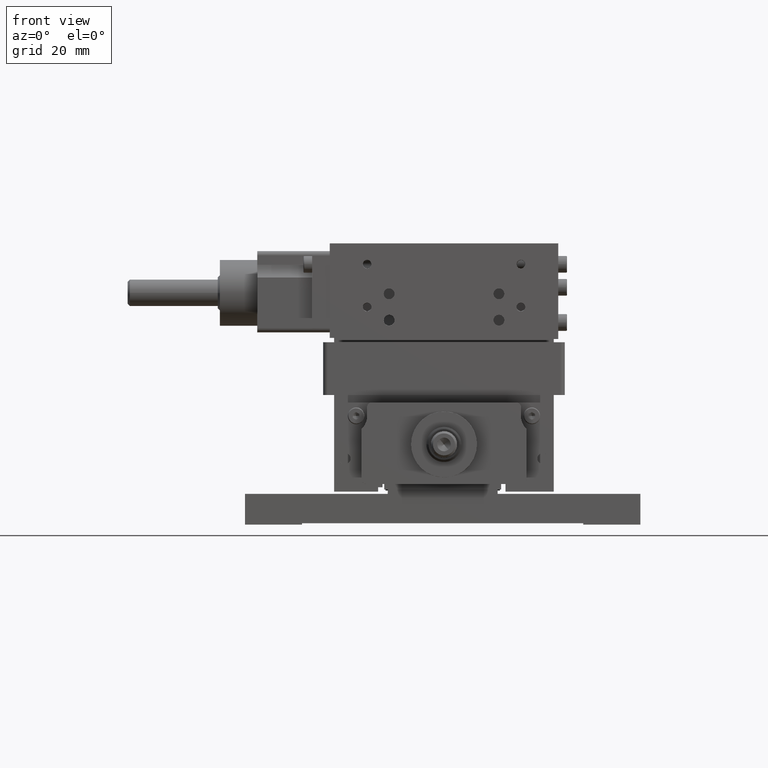
[diagram: clean part render]
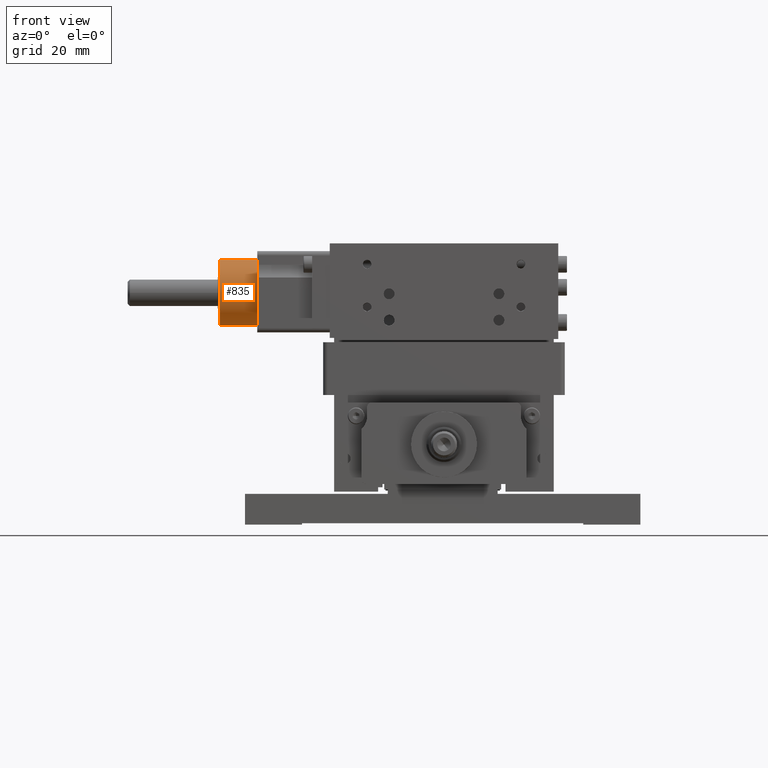
[diagram: same view with one face highlighted and labeled with its STEP entity id]
A machine part, front view. The second image highlights one B-rep face of the part: STEP entity #835.
In plain terms, the highlighted face is a freeform B-spline surface patch.
Its self-contained STEP definition (entity closure, byte-faithful):
#835=ADVANCED_FACE('',(#2019),#38931,.T.);
#2019=FACE_OUTER_BOUND('',#3205,.T.);
#3205=EDGE_LOOP('',(#4647,#4648,#4649,#4650));
#4647=ORIENTED_EDGE('',*,*,#31523,.T.);
#4648=ORIENTED_EDGE('',*,*,#31524,.T.);
#4649=ORIENTED_EDGE('',*,*,#31525,.T.);
#4650=ORIENTED_EDGE('',*,*,#31526,.T.);
#10426=PCURVE('',#38931,#16205);
#10427=PCURVE('',#38931,#16206);
#10428=PCURVE('',#38931,#16207);
#10429=PCURVE('',#38931,#16208);
#10431=PCURVE('',#38932,#16210);
#10433=PCURVE('',#38932,#16212);
#10435=PCURVE('',#38444,#16214);
#10538=PCURVE('',#38453,#16317);
#16205=DEFINITIONAL_REPRESENTATION('',(#22009),#87459);
#16206=DEFINITIONAL_REPRESENTATION('',(#22011),#87459);
#16207=DEFINITIONAL_REPRESENTATION('',(#22012),#87459);
#16208=DEFINITIONAL_REPRESENTATION('',(#22014),#87459);
#16210=DEFINITIONAL_REPRESENTATION('',(#22016),#87459);
#16212=DEFINITIONAL_REPRESENTATION('',(#22018),#87459);
#16214=DEFINITIONAL_REPRESENTATION('',(#34452),#87459);
#16317=DEFINITIONAL_REPRESENTATION('',(#34503),#87459);
#22009=B_SPLINE_CURVE_WITH_KNOTS('',1,(#43330,#43331),.UNSPECIFIED.,.F.,
 .F.,(2,2),(0.,40.1691756688348),.UNSPECIFIED.);
#22010=B_SPLINE_CURVE_WITH_KNOTS('',1,(#43332,#43333),.UNSPECIFIED.,.F.,
 .F.,(2,2),(0.970000000000042,9.47000000000004),.UNSPECIFIED.);
#22011=B_SPLINE_CURVE_WITH_KNOTS('',1,(#43334,#43335),.UNSPECIFIED.,.F.,
 .F.,(2,2),(0.970000000000042,9.47000000000004),.UNSPECIFIED.);
#22012=B_SPLINE_CURVE_WITH_KNOTS('',1,(#43345,#43346),.UNSPECIFIED.,.F.,
 .F.,(2,2),(-16.6072307669113,23.5619449019234),.UNSPECIFIED.);
#22013=B_SPLINE_CURVE_WITH_KNOTS('',1,(#43347,#43348),.UNSPECIFIED.,.F.,
 .F.,(2,2),(-8.5,0.),.UNSPECIFIED.);
#22014=B_SPLINE_CURVE_WITH_KNOTS('',1,(#43349,#43350),.UNSPECIFIED.,.F.,
 .F.,(2,2),(-8.5,0.),.UNSPECIFIED.);
#22016=B_SPLINE_CURVE_WITH_KNOTS('',1,(#43356,#43357),.UNSPECIFIED.,.F.,
 .F.,(2,2),(0.970000000000042,9.47000000000004),.UNSPECIFIED.);
#22018=B_SPLINE_CURVE_WITH_KNOTS('',1,(#43363,#43364),.UNSPECIFIED.,.F.,
 .F.,(2,2),(-8.5,0.),.UNSPECIFIED.);
#28574=SURFACE_CURVE('',#34447,(#10426,#10435),.PCURVE_S1.);
#28575=SURFACE_CURVE('',#22010,(#10427,#10431),.PCURVE_S1.);
#28576=SURFACE_CURVE('',#34448,(#10428,#10538),.PCURVE_S1.);
#28577=SURFACE_CURVE('',#22013,(#10429,#10433),.PCURVE_S1.);
#31523=EDGE_CURVE('',#36575,#36576,#28574,.T.);
#31524=EDGE_CURVE('',#36576,#36577,#28575,.T.);
#31525=EDGE_CURVE('',#36577,#36574,#28576,.T.);
#31526=EDGE_CURVE('',#36574,#36575,#28577,.T.);
#34447=(
BOUNDED_CURVE()
B_SPLINE_CURVE(2,(#43319,#43320,#43321,#43322,#43323,#43324,#43325,#43326,
#43327,#43328,#43329),.UNSPECIFIED.,.F.,.F.)
B_SPLINE_CURVE_WITH_KNOTS((3,2,2,2,2,3),(0.,4.82625831594963,13.6619876541709,
22.4977169923922,31.3334463306135,40.1691756688348),.UNSPECIFIED.)
CURVE()
GEOMETRIC_REPRESENTATION_ITEM()
RATIONAL_B_SPLINE_CURVE((1.,0.948683298050513,1.,0.831469612302545,1.,0.831469612302545,
1.,0.831469612302545,1.,0.831469612302545,1.))
REPRESENTATION_ITEM('')
);
#34448=(
BOUNDED_CURVE()
B_SPLINE_CURVE(2,(#43336,#43337,#43338,#43339,#43340,#43341,#43342,#43343,
#43344),.UNSPECIFIED.,.F.,.F.)
B_SPLINE_CURVE_WITH_KNOTS((3,2,2,2,3),(-16.6072307669113,-8.30361538345566,
0.,11.7809724509617,23.5619449019234),.UNSPECIFIED.)
CURVE()
GEOMETRIC_REPRESENTATION_ITEM()
RATIONAL_B_SPLINE_CURVE((1.,0.85065080835204,1.,0.85065080835204,1.,0.707106781186548,
1.,0.707106781186548,1.))
REPRESENTATION_ITEM('')
);
#34452=(
BOUNDED_CURVE()
B_SPLINE_CURVE(2,(#43368,#43369,#43370,#43371,#43372,#43373,#43374,#43375,
#43376,#43377,#43378),.UNSPECIFIED.,.F.,.F.)
B_SPLINE_CURVE_WITH_KNOTS((3,2,2,2,2,3),(0.,4.81869819943784,15.3765398493485,
25.9343840164454,36.4922281835423,40.1691756688348),.UNSPECIFIED.)
CURVE()
GEOMETRIC_REPRESENTATION_ITEM()
RATIONAL_B_SPLINE_CURVE((1.,0.948683345734214,1.,0.761637232548861,1.,0.761637132434786,
1.,0.761637132434786,1.,0.971025054237571,1.))
REPRESENTATION_ITEM('')
);
#34503=(
BOUNDED_CURVE()
B_SPLINE_CURVE(2,(#43769,#43770,#43771,#43772,#43773,#43774,#43775,#43776,
#43777),.UNSPECIFIED.,.F.,.F.)
B_SPLINE_CURVE_WITH_KNOTS((3,2,2,2,3),(-16.6072307669113,-11.7338926628448,
0.0313874604317661,11.7966675837083,23.5619449019234),.UNSPECIFIED.)
CURVE()
GEOMETRIC_REPRESENTATION_ITEM()
RATIONAL_B_SPLINE_CURVE((1.,0.94868330444796,1.,0.707106781186548,1.,0.707106781186548,
1.,0.707106900395835,1.))
REPRESENTATION_ITEM('')
);
#36574=VERTEX_POINT('',#42610);
#36575=VERTEX_POINT('',#42611);
#36576=VERTEX_POINT('',#42612);
#36577=VERTEX_POINT('',#42613);
#38444=B_SPLINE_SURFACE_WITH_KNOTS('',1,1,((#39894,#39895),(#39896,#39897)),
 .UNSPECIFIED.,.F.,.F.,.F.,(2,2),(2,2),(-10.9162814274485,9.28329831158624),
(-10.3482940034729,11.5278333992854),.UNSPECIFIED.);
#38453=B_SPLINE_SURFACE_WITH_KNOTS('',1,1,((#40092,#40093),(#40094,#40095)),
 .UNSPECIFIED.,.F.,.F.,.F.,(2,2),(2,2),(-40.1200000000001,5.12000000000005),
(-22.7200000000001,2.72),.UNSPECIFIED.);
#38931=(
BOUNDED_SURFACE()
B_SPLINE_SURFACE(2,1,((#39858,#39859),(#39860,#39861),(#39862,#39863),(#39864,
#39865),(#39866,#39867),(#39868,#39869),(#39870,#39871),(#39872,#39873),
(#39874,#39875)),.UNSPECIFIED.,.T.,.F.,.F.)
B_SPLINE_SURFACE_WITH_KNOTS((3,2,2,2,3),(2,2),(0.,1.5707963267949,3.14159265358979,
4.71238898038469,6.28318530717959),(0.,10.4400000000001),.UNSPECIFIED.)
GEOMETRIC_REPRESENTATION_ITEM()
RATIONAL_B_SPLINE_SURFACE(((1.,1.),(0.707106781186548,0.707106781186548),
(1.,1.),(0.707106781186548,0.707106781186548),(1.,1.),(0.707106781186548,
0.707106781186548),(1.,1.),(0.707106781186548,0.707106781186548),(1.,1.)))
REPRESENTATION_ITEM('')
SURFACE()
);
#38932=(
BOUNDED_SURFACE()
B_SPLINE_SURFACE(2,1,((#39876,#39877),(#39878,#39879),(#39880,#39881),(#39882,
#39883),(#39884,#39885),(#39886,#39887),(#39888,#39889),(#39890,#39891),
(#39892,#39893)),.UNSPECIFIED.,.T.,.F.,.F.)
B_SPLINE_SURFACE_WITH_KNOTS((3,2,2,2,3),(2,2),(0.,1.5707963267949,3.14159265358979,
4.71238898038469,6.28318530717959),(0.,10.4400000000001),.UNSPECIFIED.)
GEOMETRIC_REPRESENTATION_ITEM()
RATIONAL_B_SPLINE_SURFACE(((1.,1.),(0.707106781186548,0.707106781186548),
(1.,1.),(0.707106781186548,0.707106781186548),(1.,1.),(0.707106781186548,
0.707106781186548),(1.,1.),(0.707106781186548,0.707106781186548),(1.,1.)))
REPRESENTATION_ITEM('')
SURFACE()
);
#39858=CARTESIAN_POINT('',(-51.8864528104949,-0.0739224317621039,45.7690559995547));
#39859=CARTESIAN_POINT('',(-41.4464528104948,-0.0739224317621074,45.7690559995547));
#39860=CARTESIAN_POINT('',(-51.8864528104948,7.42607756823789,45.7690559995547));
#39861=CARTESIAN_POINT('',(-41.4464528104948,7.4260775682379,45.7690559995547));
#39862=CARTESIAN_POINT('',(-51.8864528104949,7.4260775682379,53.2690559995547));
#39863=CARTESIAN_POINT('',(-41.4464528104948,7.42607756823791,53.2690559995547));
#39864=CARTESIAN_POINT('',(-51.8864528104948,7.4260775682379,60.7690559995547));
#39865=CARTESIAN_POINT('',(-41.4464528104948,7.42607756823791,60.7690559995547));
#39866=CARTESIAN_POINT('',(-51.8864528104949,-0.073922431762103,60.7690559995547));
#39867=CARTESIAN_POINT('',(-41.4464528104948,-0.0739224317620994,60.7690559995547));
#39868=CARTESIAN_POINT('',(-51.8864528104948,-7.5739224317621,60.7690559995547));
#39869=CARTESIAN_POINT('',(-41.4464528104948,-7.57392243176211,60.7690559995547));
#39870=CARTESIAN_POINT('',(-51.8864528104949,-7.5739224317621,53.2690559995547));
#39871=CARTESIAN_POINT('',(-41.4464528104948,-7.57392243176212,53.2690559995547));
#39872=CARTESIAN_POINT('',(-51.8864528104948,-7.5739224317621,45.7690559995547));
#39873=CARTESIAN_POINT('',(-41.4464528104948,-7.57392243176212,45.7690559995547));
#39874=CARTESIAN_POINT('',(-51.8864528104949,-0.0739224317621039,45.7690559995547));
#39875=CARTESIAN_POINT('',(-41.4464528104948,-0.0739224317621074,45.7690559995547));
#39876=CARTESIAN_POINT('',(-51.8864528104949,-0.0739224317621039,45.7690559995547));
#39877=CARTESIAN_POINT('',(-41.4464528104948,-0.0739224317621074,45.7690559995547));
#39878=CARTESIAN_POINT('',(-51.8864528104948,7.42607756823789,45.7690559995547));
#39879=CARTESIAN_POINT('',(-41.4464528104948,7.4260775682379,45.7690559995547));
#39880=CARTESIAN_POINT('',(-51.8864528104949,7.4260775682379,53.2690559995547));
#39881=CARTESIAN_POINT('',(-41.4464528104948,7.42607756823791,53.2690559995547));
#39882=CARTESIAN_POINT('',(-51.8864528104948,7.4260775682379,60.7690559995547));
#39883=CARTESIAN_POINT('',(-41.4464528104948,7.42607756823791,60.7690559995547));
#39884=CARTESIAN_POINT('',(-51.8864528104949,-0.073922431762103,60.7690559995547));
#39885=CARTESIAN_POINT('',(-41.4464528104948,-0.0739224317620994,60.7690559995547));
#39886=CARTESIAN_POINT('',(-51.8864528104948,-7.5739224317621,60.7690559995547));
#39887=CARTESIAN_POINT('',(-41.4464528104948,-7.57392243176211,60.7690559995547));
#39888=CARTESIAN_POINT('',(-51.8864528104949,-7.5739224317621,53.2690559995547));
#39889=CARTESIAN_POINT('',(-41.4464528104948,-7.57392243176212,53.2690559995547));
#39890=CARTESIAN_POINT('',(-51.8864528104948,-7.5739224317621,45.7690559995547));
#39891=CARTESIAN_POINT('',(-41.4464528104948,-7.57392243176212,45.7690559995547));
#39892=CARTESIAN_POINT('',(-51.8864528104949,-0.0739224317621039,45.7690559995547));
#39893=CARTESIAN_POINT('',(-41.4464528104948,-0.0739224317621074,45.7690559995547));
#39894=CARTESIAN_POINT('',(-50.9164528104948,-10.9902038592106,63.6173500030276));
#39895=CARTESIAN_POINT('',(-50.9164528104948,-10.9902038592105,41.7412226002692));
#39896=CARTESIAN_POINT('',(-50.9164528104948,9.20937587982412,63.6173500030276));
#39897=CARTESIAN_POINT('',(-50.9164528104948,9.20937587982415,41.7412226002693));
#40092=CARTESIAN_POINT('',(-42.4164528104948,-22.6939224317622,65.9890559995547));
#40093=CARTESIAN_POINT('',(-42.4164528104948,-22.6939224317622,40.5490559995546));
#40094=CARTESIAN_POINT('',(-42.4164528104948,22.546077568238,65.9890559995548));
#40095=CARTESIAN_POINT('',(-42.4164528104948,22.546077568238,40.5490559995547));
#42610=CARTESIAN_POINT('',(-42.4164528104948,5.92607756823791,48.7690559995547));
#42611=CARTESIAN_POINT('',(-50.9164528104948,5.9260775682379,48.7690559995547));
#42612=CARTESIAN_POINT('',(-50.9164528104948,-0.0739224317621048,45.7690559995547));
#42613=CARTESIAN_POINT('',(-42.4164528104948,-0.0739224317621066,45.7690559995547));
#43319=CARTESIAN_POINT('',(-50.9164528104948,5.9260775682379,48.7690559995547));
#43320=CARTESIAN_POINT('',(-50.9164528104948,7.4260775682379,50.7690559995547));
#43321=CARTESIAN_POINT('',(-50.9164528104948,7.42607756823789,53.2690559995547));
#43322=CARTESIAN_POINT('',(-50.9164528104948,7.42607756823788,58.2803957839494));
#43323=CARTESIAN_POINT('',(-50.9164528104948,2.79620331097605,60.1981524933893));
#43324=CARTESIAN_POINT('',(-50.9164528104948,-1.83367094628578,62.1159092028292));
#43325=CARTESIAN_POINT('',(-50.9164528104948,-5.37722329066123,58.5723568584538));
#43326=CARTESIAN_POINT('',(-50.9164528104948,-8.92077563503667,55.0288045140783));
#43327=CARTESIAN_POINT('',(-50.9164528104948,-7.00301892559676,50.3989302568165));
#43328=CARTESIAN_POINT('',(-50.9164528104948,-5.08526221615685,45.7690559995547));
#43329=CARTESIAN_POINT('',(-50.9164528104948,-0.0739224317621074,45.7690559995547));
#43330=CARTESIAN_POINT('',(0.920151184510611,0.970000000000042));
#43331=CARTESIAN_POINT('',(6.28318530717959,0.970000000000042));
#43332=CARTESIAN_POINT('',(-50.9164528104948,-0.0739224317621048,45.7690559995547));
#43333=CARTESIAN_POINT('',(-42.4164528104948,-0.0739224317621066,45.7690559995547));
#43334=CARTESIAN_POINT('',(6.28318530717959,0.970000000000042));
#43335=CARTESIAN_POINT('',(6.28318530717959,9.47000000000004));
#43336=CARTESIAN_POINT('',(-42.4164528104948,-0.0739224317621079,45.7690559995547));
#43337=CARTESIAN_POINT('',(-42.4164528104948,-4.70917734738632,45.7690559995547));
#43338=CARTESIAN_POINT('',(-42.4164528104948,-6.78212636426148,49.914954033305));
#43339=CARTESIAN_POINT('',(-42.4164528104948,-8.85507538113664,54.0608520670553));
#43340=CARTESIAN_POINT('',(-42.4164528104947,-6.07392243176212,57.7690559995547));
#43341=CARTESIAN_POINT('',(-42.4164528104947,-1.57392243176213,63.7690559995547));
#43342=CARTESIAN_POINT('',(-42.4164528104947,4.42607756823787,59.2690559995547));
#43343=CARTESIAN_POINT('',(-42.4164528104948,10.4260775682379,54.7690559995547));
#43344=CARTESIAN_POINT('',(-42.4164528104948,5.9260775682379,48.7690559995547));
#43345=CARTESIAN_POINT('',(6.28318530717959,9.47000000000004));
#43346=CARTESIAN_POINT('',(0.920151184510611,9.47000000000005));
#43347=CARTESIAN_POINT('',(-42.4164528104948,5.92607756823791,48.7690559995547));
#43348=CARTESIAN_POINT('',(-50.9164528104948,5.9260775682379,48.7690559995547));
#43349=CARTESIAN_POINT('',(0.920151184510611,9.47000000000005));
#43350=CARTESIAN_POINT('',(0.920151184510611,0.970000000000042));
#43356=CARTESIAN_POINT('',(0.,0.970000000000039));
#43357=CARTESIAN_POINT('',(0.,9.47000000000004));
#43363=CARTESIAN_POINT('',(0.920151184510611,9.47000000000005));
#43364=CARTESIAN_POINT('',(0.920151184510611,0.970000000000045));
#43368=CARTESIAN_POINT('',(5.99999999999999,4.50000000000001));
#43369=CARTESIAN_POINT('',(7.49999924605436,2.50000100526085));
#43370=CARTESIAN_POINT('',(7.5,8.93476210686719E-15));
#43371=CARTESIAN_POINT('',(7.49999802831166,-6.38102879794704));
#43372=CARTESIAN_POINT('',(1.20136682255227,-7.40315593228121));
#43373=CARTESIAN_POINT('',(-5.09726635489548,-8.42528338657638));
#43374=CARTESIAN_POINT('',(-7.11512473537885,-2.37170824512629));
#43375=CARTESIAN_POINT('',(-9.13298311586222,3.68186689632379));
#43376=CARTESIAN_POINT('',(-3.48080010132694,6.64334483935633));
#43377=CARTESIAN_POINT('',(-1.84581519127678,7.50000000000009));
#43378=CARTESIAN_POINT('',(3.27666071603312E-13,7.5));
#43769=CARTESIAN_POINT('',(-17.5000000000001,-2.50000040460984));
#43770=CARTESIAN_POINT('',(-20.00000013487,-2.50000010115253));
#43771=CARTESIAN_POINT('',(-22.,-4.00000000000002));
#43772=CARTESIAN_POINT('',(-28.,-8.50000000000002));
#43773=CARTESIAN_POINT('',(-23.5,-14.5));
#43774=CARTESIAN_POINT('',(-19.,-20.5));
#43775=CARTESIAN_POINT('',(-13.,-16.));
#43776=CARTESIAN_POINT('',(-7.00000202304857,-11.5000015172864));
#43777=CARTESIAN_POINT('',(-11.5,-5.50000000000003));
#87459=(
GEOMETRIC_REPRESENTATION_CONTEXT(2)
PARAMETRIC_REPRESENTATION_CONTEXT()
REPRESENTATION_CONTEXT('pspace','')
);